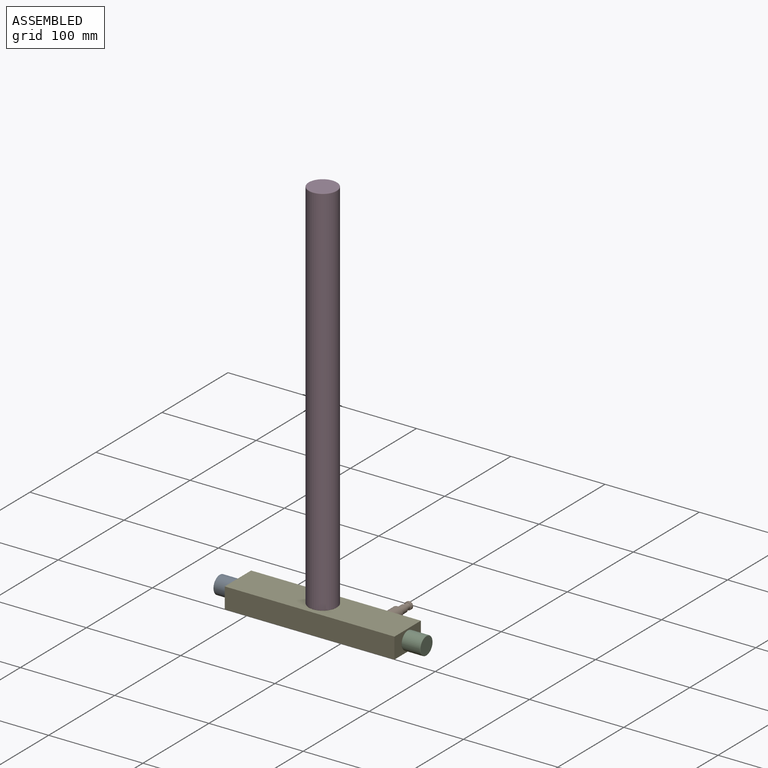
[diagram: assembled view]
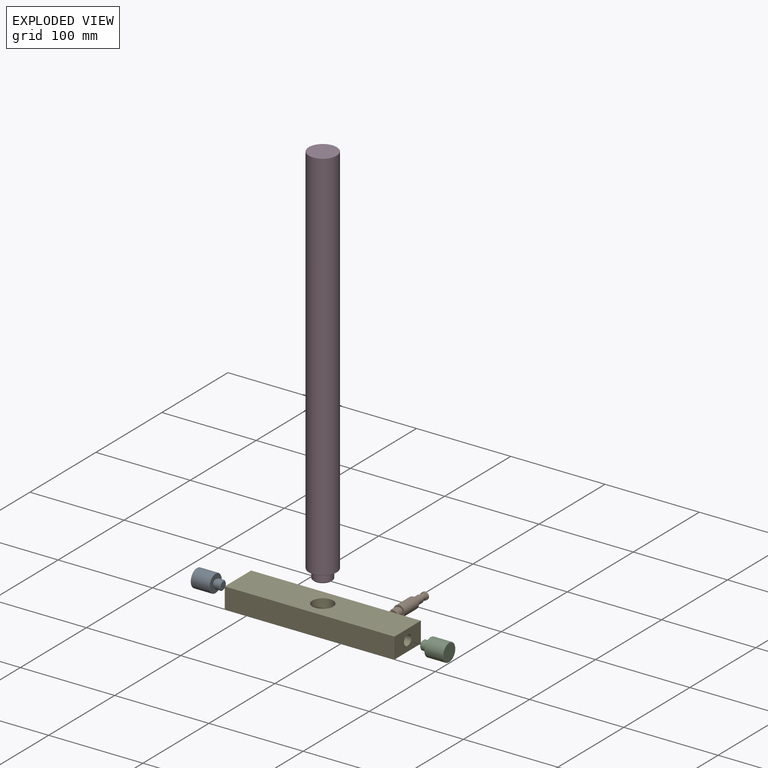
[diagram: exploded view]
GUIDED TOUR — MATED ASSEMBLY (Onshape document 00c800ad0c8215ab2e1d4e04, AutoMate assembly 00c800ad0c8215ab2e1d4e04_a147b3312b777160ae825861_ec727378c7554f30df9ab723_default)

This assembly has 5 components, labeled P0..P4 below (a component is one placed occurrence of a part; the same part can appear more than once), held together by 4 mates. A mate is a constraint between two components; its type names the relative motion it leaves free:
  FASTENED — locks the two components together rigidly (no relative motion).
Axis/direction vectors are unit vectors and 'through' points are millimeter coordinates, both in the assembly's world frame.

MATES
  1. FASTENED "Fastened 6": P4 <-> P1, direction (0.000, 1.000, 0.000) through (97.03, 25.33, 15.22) mm
  2. FASTENED "Fastened 2": P2 <-> P4, direction (-1.000, 0.000, 0.000) through (137.03, 5.33, 15.22) mm
  3. FASTENED "Fastened 1": P0 <-> P4, direction (1.000, 0.000, 0.000) through (-42.97, 5.33, 15.22) mm
  4. FASTENED "Fastened 5": P3 <-> P4, direction (0.000, 0.000, -1.000) through (47.03, 5.33, 26.22) mm

ASSEMBLY ORDER
  1. P0 — the base component [order verified]
  2. P4 [order verified]
  3. P2 [order verified]
  4. P3 [order verified]
  5. P1 [order verified]
Order-tag legend:
  [order verified] — this step's position reverses a verified removal order: the component was checked to insert without passing through the ones already placed.

Of the 5 components, 4 carry the full construction recipe — the FeatureScript program that regenerates the part's solid from scratch; the rest are supplied as boundary geometry only.
Each toured component is shown spotlighted twice — in the assembled view, then in the exploded view, where a leader line traces a displaced component back to its assembled socket (saturated green if recipe-attached, orange if geometry-only; every other component desaturated gray) — followed by its recipe or geometry summary and the mates that hold it.
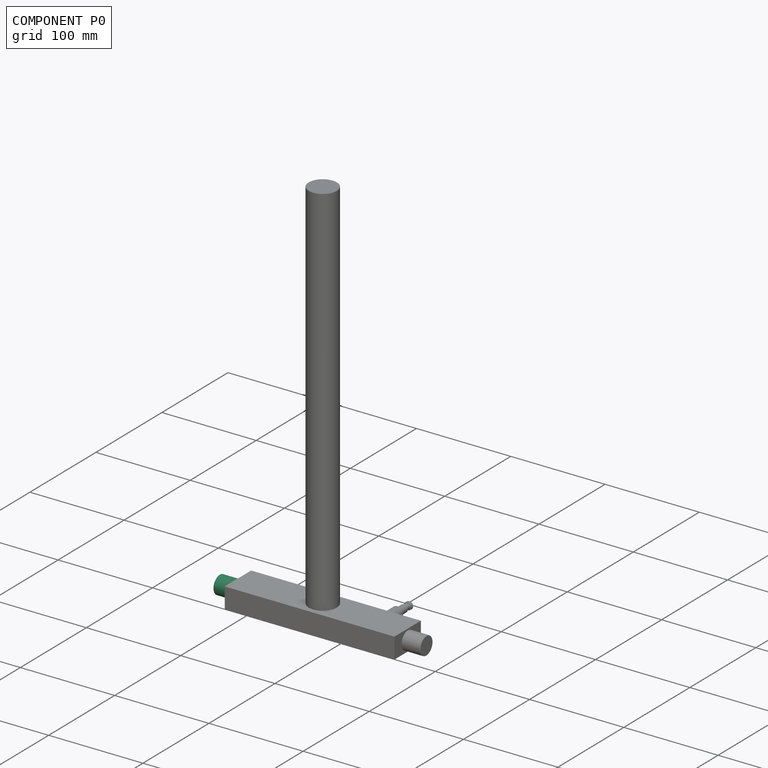
[diagram: component P0 — assembled]
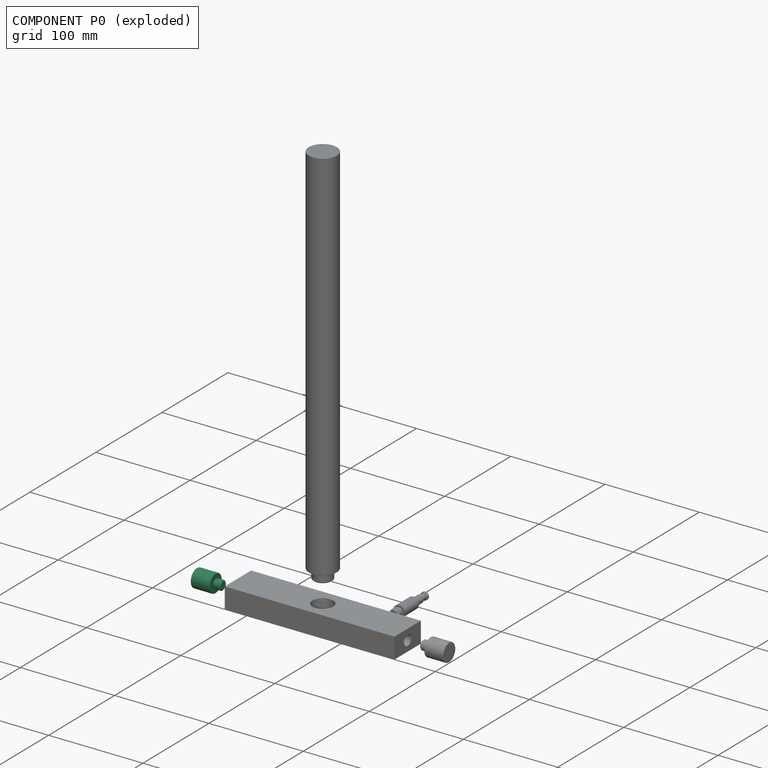
[diagram: component P0 — exploded]
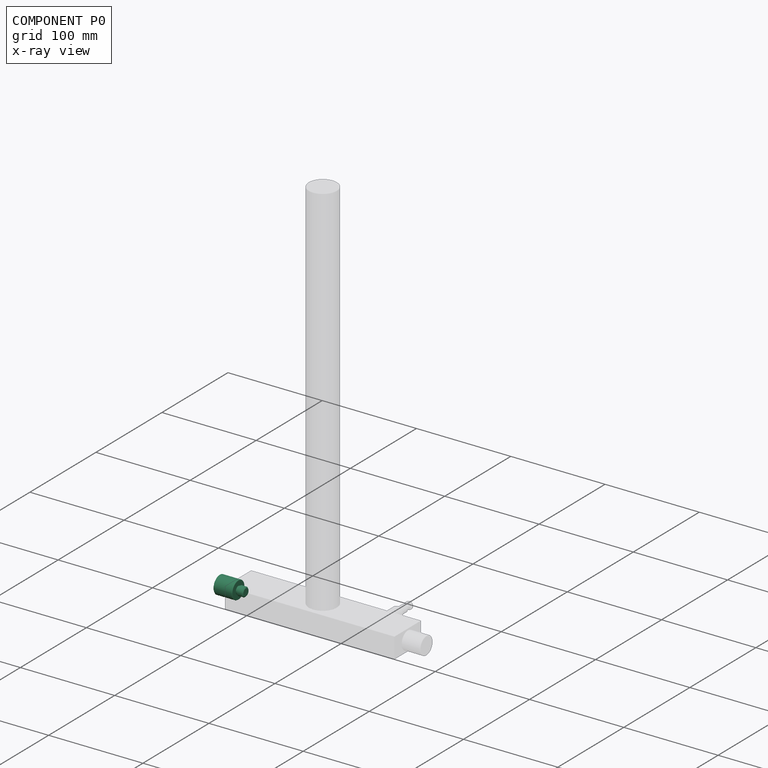
[diagram: component P0 — x-ray view]
COMPONENT P0 — recipe-attached (CADFS 00506106, mesh-verified: the recipe's output STEP matches this component's geometry to below the mesh-comparison resolution (tessellation chordal tolerance ~0.0582 mm)).
Held by: FASTENED mate "Fastened 1" to P4.
Construction recipe (FeatureScript — the CAD program that rebuilds this solid; sketch coordinates are in the units given by the * unit suffixes, e.g. mm):

FeatureScript 1511;
import(path : "onshape/std/geometry.fs", version : "1511.0");
import(path : "onshape/std/common.fs", version : "1511.0");
const mm = millimeter;
const VERTEX = EntityType.VERTEX;
const EDGE = EntityType.EDGE;
const FACE = EntityType.FACE;
const BODY = EntityType.BODY;
function v(x, y){return vector(x, y);}
function OD(order){return orderDisambiguation(order);}
function OSD(set){return originalSetDisambiguation(set);}
function TD(topology){return topologyDisambiguation(topology);}
function TDD(query){return trueDependencyDisambiguation(query);}
function sQuery(a, b, c) {return sketchEntityQuery(a, b, c);}

annotation { "Feature Type Name" : "Feature", "Feature Type Description" : "" }
export const myFeature = defineFeature(function(context is Context, id is Id, definition is map)
    precondition{}
    {
        {
            var Q0;
            Q0=qCreatedBy(makeId("Top.planeOp"),FACE);
            var sketch = newSketch(context, id + "F0", { "sketchPlane" : qUnion([Q0])});
            skCircle(sketch, "E0", {"center": v(0, 0) * mm, "radius": 9.5 * mm});
            skSolve(sketch);
        }
        {
            var Q0;
            Q0 = qSketchRegion(id + "F0", true);
            extrude(context, id + "F1", {"entities" : qUnion([Q0]), "oppositeDirection" : true, "depth" : 20 * mm});
        }
        {
            var Q0;
            Q0=makeQuery(id+"F1.opExtrude","CAP_FACE",FACE,{"disambiguationData":[OSD([sQuery(id+"F0.wireOp",EDGE,"E0")])],"isStart":true});
            var sketch = newSketch(context, id + "F2", { "sketchPlane" : qUnion([Q0])});
            skCircle(sketch, "E1", {"center": v(0, 0) * mm, "radius": 5 * mm});
            skSolve(sketch);
        }
        {
            var Q0;
            Q0 = qSketchRegion(id + "F2", true);
            extrude(context, id + "F3", {"entities" : qUnion([Q0]), "operationType" : NewBodyOperationType.ADD, "depth" : 8 * mm});
        }
        {
            var Q0;
            Q0=makeQuery(id+"F1.opExtrude","CAP_EDGE",EDGE,{"disambiguationData":[OSD([sQuery(id+"F0.wireOp",EDGE,"E0")])],"isStart":false});
            var Q1;
            Q1=makeQuery(id+"F1.opExtrude","CAP_EDGE",EDGE,{"disambiguationData":[OSD([sQuery(id+"F0.wireOp",EDGE,"E0")])],"isStart":true});
            fillet(context, id + "F4", {"entities" : qUnion([Q0, Q1]), "radius" : 0.5 * mm, "tangentPropagation" : true, "allowEdgeOverflow" : false});
        }
        {
            var Q0;
            Q0=makeQuery(id+"F3.opExtrude","CAP_EDGE",EDGE,{"disambiguationData":[OSD([sQuery(id+"F2.wireOp",EDGE,"E1")])],"isStart":false});
            chamfer(context, id + "F5", {"entities" : qUnion([Q0]), "width" : 1 * mm, "tangentPropagation" : true});
        }
        {
            var Q0;
            Q0=qCreatedBy(makeId("Right.planeOp"),FACE);
            var sketch = newSketch(context, id + "F6", { "sketchPlane" : qUnion([Q0])});
            skLineSegment(sketch, "E2", {"start": v(-5, 0) * mm, "end": v(-5, 2) * mm});
            skLineSegment(sketch, "E3", {"start": v(0, 0) * mm, "end": v(0, 15.7) * mm, "construction": true});
            skLineSegment(sketch, "E4", {"start": v(-5, 0) * mm, "end": v(-4, 0) * mm});
            skLineSegment(sketch, "E5", {"start": v(-4, 2) * mm, "end": v(-4, 0) * mm});
            skLineSegment(sketch, "E6", {"start": v(-5, 2) * mm, "end": v(-4, 2) * mm});
            skSolve(sketch);
        }
        {
            var Q0;
            Q0 = qSketchRegion(id + "F6", true);
            var Q1;
            Q1=sQuery(id+"F6.wireOp",EDGE,"E3");
            revolve(context, id + "F7", {"operationType" : NewBodyOperationType.REMOVE, "entities" : qUnion([Q0]), "axis" : qUnion([Q1]), "revolveType" : RevolveType.FULL, "oppositeDirection" : true});
        }
    });
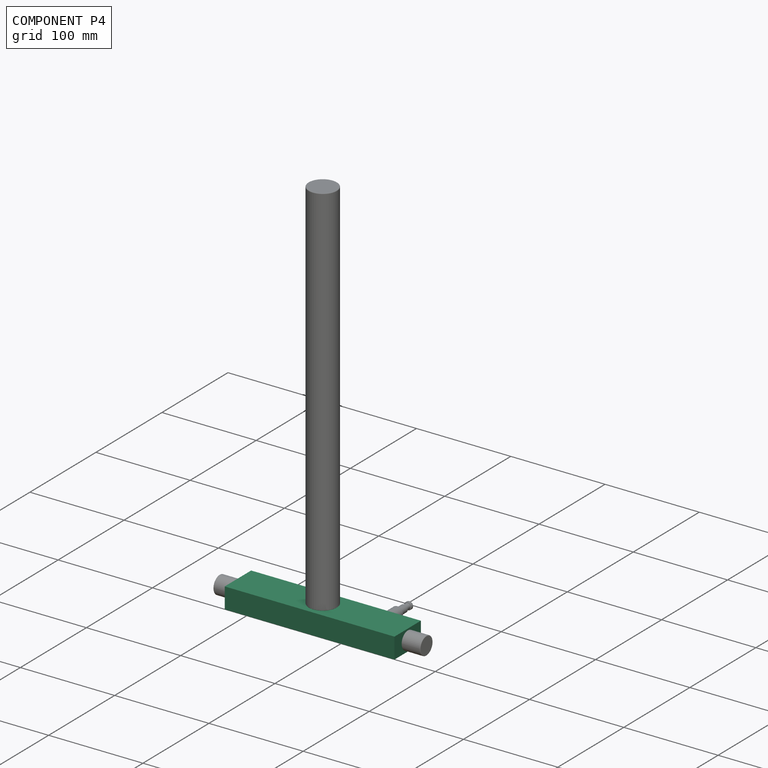
[diagram: component P4 — assembled]
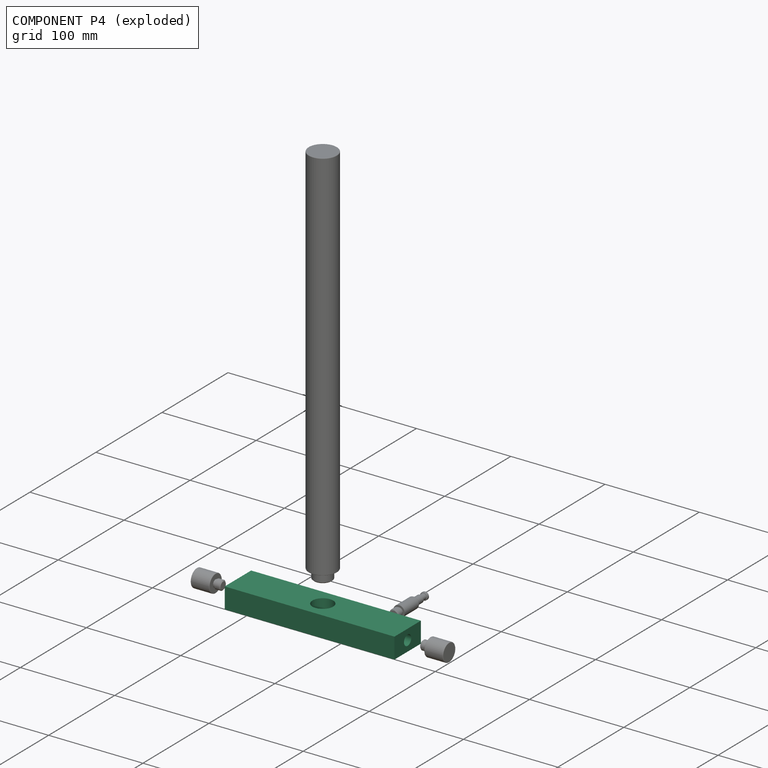
[diagram: component P4 — exploded]
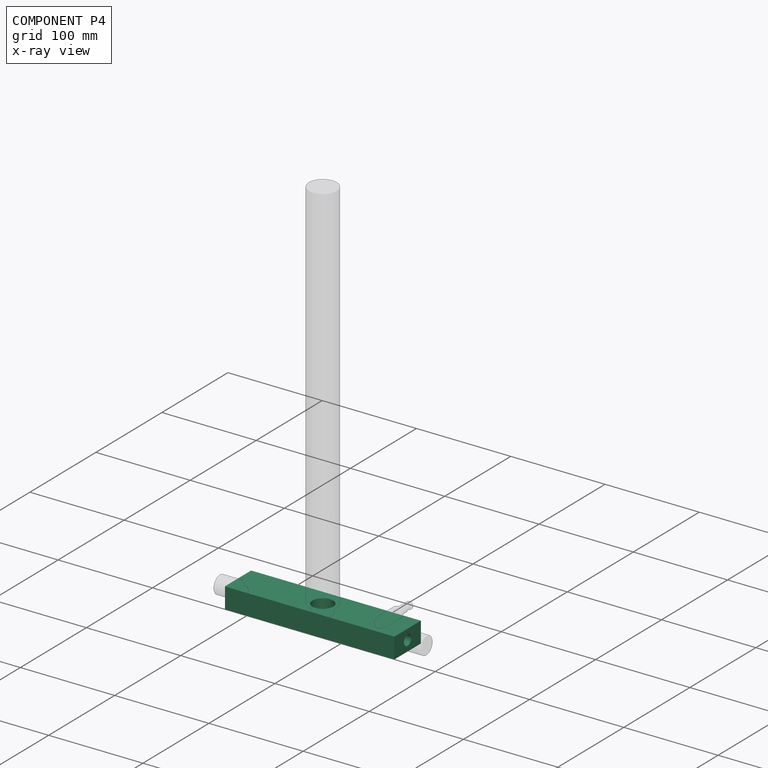
[diagram: component P4 — x-ray view]
COMPONENT P4 — recipe-attached (CADFS 00506104, mesh-verified: the recipe's output STEP matches this component's geometry to below the mesh-comparison resolution (tessellation chordal tolerance ~0.279 mm)).
Held by: FASTENED mate "Fastened 6" to P1; FASTENED mate "Fastened 2" to P2; FASTENED mate "Fastened 1" to P0; FASTENED mate "Fastened 5" to P3.
Construction recipe (FeatureScript — the CAD program that rebuilds this solid; sketch coordinates are in the units given by the * unit suffixes, e.g. mm):

FeatureScript 1511;
import(path : "onshape/std/geometry.fs", version : "1511.0");
import(path : "onshape/std/common.fs", version : "1511.0");
const mm = millimeter;
const VERTEX = EntityType.VERTEX;
const EDGE = EntityType.EDGE;
const FACE = EntityType.FACE;
const BODY = EntityType.BODY;
function v(x, y){return vector(x, y);}
function OD(order){return orderDisambiguation(order);}
function OSD(set){return originalSetDisambiguation(set);}
function TD(topology){return topologyDisambiguation(topology);}
function TDD(query){return trueDependencyDisambiguation(query);}
function sQuery(a, b, c) {return sketchEntityQuery(a, b, c);}

annotation { "Feature Type Name" : "Feature", "Feature Type Description" : "" }
export const myFeature = defineFeature(function(context is Context, id is Id, definition is map)
    precondition{}
    {
        {
            var Q0;
            Q0=qCreatedBy(makeId("Top.planeOp"),FACE);
            var sketch = newSketch(context, id + "F0", { "sketchPlane" : qUnion([Q0])});
            skLineSegment(sketch, "E0.bottom", {"start": v(-90, 20) * mm, "end": v(90, 20) * mm});
            skLineSegment(sketch, "E0.top", {"start": v(-90, -20) * mm, "end": v(90, -20) * mm});
            skLineSegment(sketch, "E0.left", {"start": v(-90, 20) * mm, "end": v(-90, -20) * mm});
            skLineSegment(sketch, "E0.right", {"start": v(90, 20) * mm, "end": v(90, -20) * mm});
            skPoint(sketch, "E0.middle", {"position": v(0, 0) * mm});
            skSolve(sketch);
        }
        {
            var Q0;
            Q0 = qSketchRegion(id + "F0", true);
            extrude(context, id + "F1", {"entities" : qUnion([Q0]), "oppositeDirection" : true, "depth" : 22 * mm});
        }
        {
            var Q0;
            Q0=makeQuery(id+"F1.opExtrude","CAP_FACE",FACE,{"disambiguationData":[OSD([sQuery(id+"F0.wireOp",EDGE,"E0.bottom"),sQuery(id+"F0.wireOp",EDGE,"E0.top"),sQuery(id+"F0.wireOp",EDGE,"E0.left"),sQuery(id+"F0.wireOp",EDGE,"E0.right")])],"isStart":true});
            var sketch = newSketch(context, id + "F2", { "sketchPlane" : qUnion([Q0])});
            skCircle(sketch, "E1", {"center": v(0, 0) * mm, "radius": 3.56 * mm});
            skSolve(sketch);
        }
        {
            var Q0;
            Q0=sQuery(id+"F2.wireOp",VERTEX,"E1.center");
            var Q1;
            Q1=makeQuery(id+"F1.opExtrude","SWEPT_BODY",BODY,{"disambiguationData":[OSD([sQuery(id+"F0.wireOp",EDGE,"E0.bottom"),sQuery(id+"F0.wireOp",EDGE,"E0.top"),sQuery(id+"F0.wireOp",EDGE,"E0.left"),sQuery(id+"F0.wireOp",EDGE,"E0.right")])]});
            hole(context, id + "F3", {"style" : HoleStyle.SIMPLE, "endStyle" : HoleEndStyle.BLIND, "standardTappedOrClearance" : lookupTablePath({ "standard" : "ISO", "fit" : "Normal", "size" : "M20", "type" : "Clearance" }), "standardBlindInLast" : lookupTablePath({ "fit" : "Standard", "standard" : "ISO", "size" : "M20", "type" : "Clearance" }), "holeDiameter" : 22 * mm, "holeDepth" : 15 * mm, "isTappedThrough" : true, "tappedDepth" : 12 * mm, "tapClearance" : 3, "locations" : qUnion([Q0]), "scope" : qUnion([Q1])});
        }
        {
            var Q0;
            Q0=makeQuery(id+"F1.opExtrude","SWEPT_FACE",FACE,{"disambiguationData":[OSD([sQuery(id+"F0.wireOp",EDGE,"E0.left")])]});
            var sketch = newSketch(context, id + "F4", { "sketchPlane" : qUnion([Q0])});
            skLineSegment(sketch, "E2", {"start": v(-20, -22) * mm, "end": v(20, 0) * mm, "construction": true});
            skLineSegment(sketch, "E3", {"start": v(20, -22) * mm, "end": v(-20, 0) * mm, "construction": true});
            skCircle(sketch, "E4", {"center": v(0, -11) * mm, "radius": 3.8 * mm});
            skSolve(sketch);
        }
        {
            var Q0;
            Q0=sQuery(id+"F4.wireOp",VERTEX,"E4.center");
            var Q1;
            Q1=makeQuery(id+"F1.opExtrude","SWEPT_BODY",BODY,{"disambiguationData":[OSD([sQuery(id+"F0.wireOp",EDGE,"E0.bottom"),sQuery(id+"F0.wireOp",EDGE,"E0.top"),sQuery(id+"F0.wireOp",EDGE,"E0.left"),sQuery(id+"F0.wireOp",EDGE,"E0.right")])]});
            hole(context, id + "F5", {"style" : HoleStyle.SIMPLE, "endStyle" : HoleEndStyle.BLIND, "standardTappedOrClearance" : lookupTablePath({ "standard" : "ISO", "fit" : "Normal", "size" : "M10", "type" : "Clearance" }), "standardBlindInLast" : lookupTablePath({ "fit" : "Standard", "standard" : "ISO", "size" : "M10", "type" : "Clearance" }), "holeDiameter" : 11 * mm, "holeDepth" : 12 * mm, "isTappedThrough" : true, "tappedDepth" : 12 * mm, "tapClearance" : 3, "locations" : qUnion([Q0]), "scope" : qUnion([Q1])});
        }
        {
            var Q0;
            Q0=makeQuery(id+"F1.opExtrude","SWEPT_FACE",FACE,{"disambiguationData":[OSD([sQuery(id+"F0.wireOp",EDGE,"E0.right")])]});
            var sketch = newSketch(context, id + "F6", { "sketchPlane" : qUnion([Q0])});
            skLineSegment(sketch, "E5", {"start": v(-20, -22) * mm, "end": v(20, 0) * mm, "construction": true});
            skLineSegment(sketch, "E6", {"start": v(20, -22) * mm, "end": v(-20, 0) * mm, "construction": true});
            skCircle(sketch, "E7", {"center": v(0, -11) * mm, "radius": 3.07 * mm, "construction": true});
            skSolve(sketch);
        }
        {
            var Q0;
            Q0=sQuery(id+"F6.wireOp",VERTEX,"E7.center");
            var Q1;
            Q1=makeQuery(id+"F1.opExtrude","SWEPT_BODY",BODY,{"disambiguationData":[OSD([sQuery(id+"F0.wireOp",EDGE,"E0.bottom"),sQuery(id+"F0.wireOp",EDGE,"E0.top"),sQuery(id+"F0.wireOp",EDGE,"E0.left"),sQuery(id+"F0.wireOp",EDGE,"E0.right")])]});
            hole(context, id + "F7", {"style" : HoleStyle.SIMPLE, "endStyle" : HoleEndStyle.BLIND, "standardTappedOrClearance" : lookupTablePath({ "standard" : "ISO", "fit" : "Normal", "size" : "M10", "type" : "Clearance" }), "standardBlindInLast" : lookupTablePath({ "fit" : "Standard", "standard" : "ISO", "size" : "M10", "type" : "Clearance" }), "holeDiameter" : 11 * mm, "holeDepth" : 12 * mm, "isTappedThrough" : true, "tappedDepth" : 12 * mm, "tapClearance" : 3, "locations" : qUnion([Q0]), "scope" : qUnion([Q1])});
        }
        {
            var Q0;
            Q0=makeQuery(id+"F1.opExtrude","SWEPT_FACE",FACE,{"disambiguationData":[OSD([sQuery(id+"F0.wireOp",EDGE,"E0.bottom")])]});
            var sketch = newSketch(context, id + "F8", { "sketchPlane" : qUnion([Q0])});
            skLineSegment(sketch, "E8", {"start": v(-28.35, -11) * mm, "end": v(-105.11, -11) * mm, "construction": true});
            skLineSegment(sketch, "E9", {"start": v(-50, -40.93) * mm, "end": v(-50, 36.3) * mm, "construction": true});
            skCircle(sketch, "E10", {"center": v(-50, -11) * mm, "radius": 3.4 * mm});
            skSolve(sketch);
        }
        {
            var Q0;
            Q0=sQuery(id+"F8.wireOp",VERTEX,"E10.center");
            var Q1;
            Q1=makeQuery(id+"F1.opExtrude","SWEPT_BODY",BODY,{"disambiguationData":[OSD([sQuery(id+"F0.wireOp",EDGE,"E0.bottom"),sQuery(id+"F0.wireOp",EDGE,"E0.top"),sQuery(id+"F0.wireOp",EDGE,"E0.left"),sQuery(id+"F0.wireOp",EDGE,"E0.right")])]});
            hole(context, id + "F9", {"style" : HoleStyle.SIMPLE, "endStyle" : HoleEndStyle.BLIND, "standardTappedOrClearance" : lookupTablePath({ "standard" : "ISO", "fit" : "Normal", "size" : "M10", "type" : "Clearance" }), "standardBlindInLast" : lookupTablePath({ "fit" : "Standard", "standard" : "ISO", "size" : "M10", "type" : "Clearance" }), "holeDiameter" : 11 * mm, "holeDepth" : 12 * mm, "isTappedThrough" : true, "tappedDepth" : 12 * mm, "tapClearance" : 3, "locations" : qUnion([Q0]), "scope" : qUnion([Q1])});
        }
    });
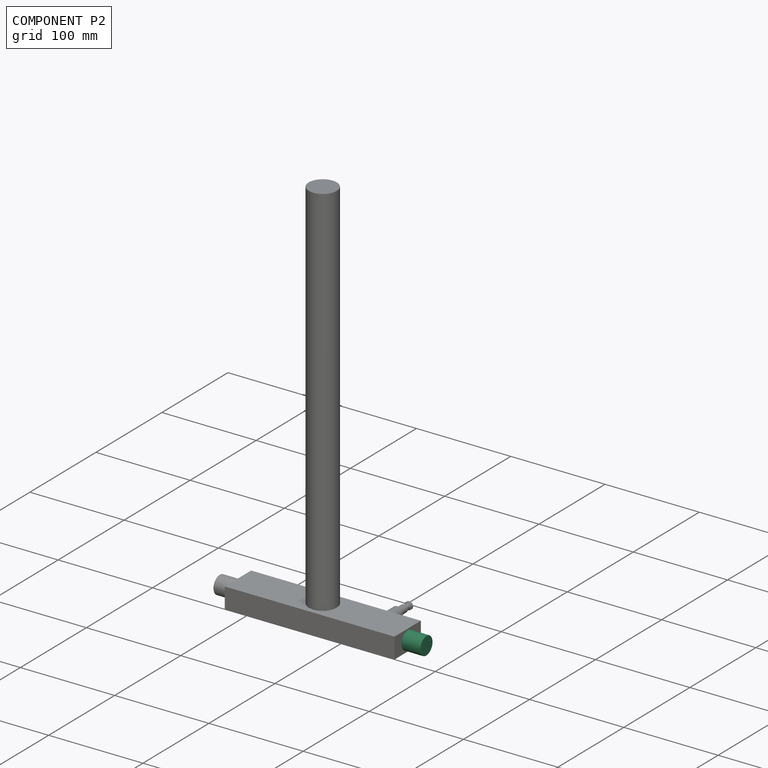
[diagram: component P2 — assembled]
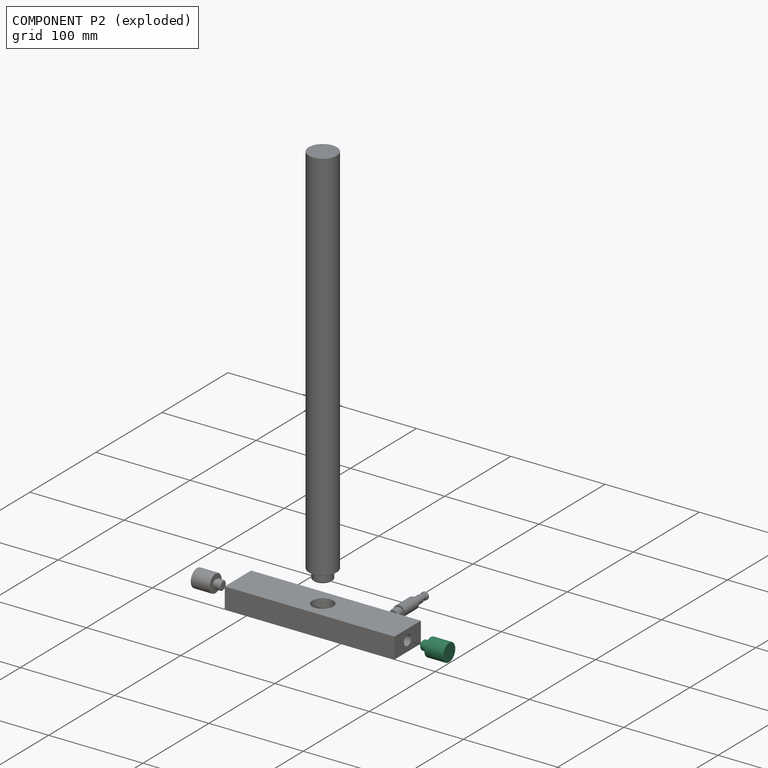
[diagram: component P2 — exploded]
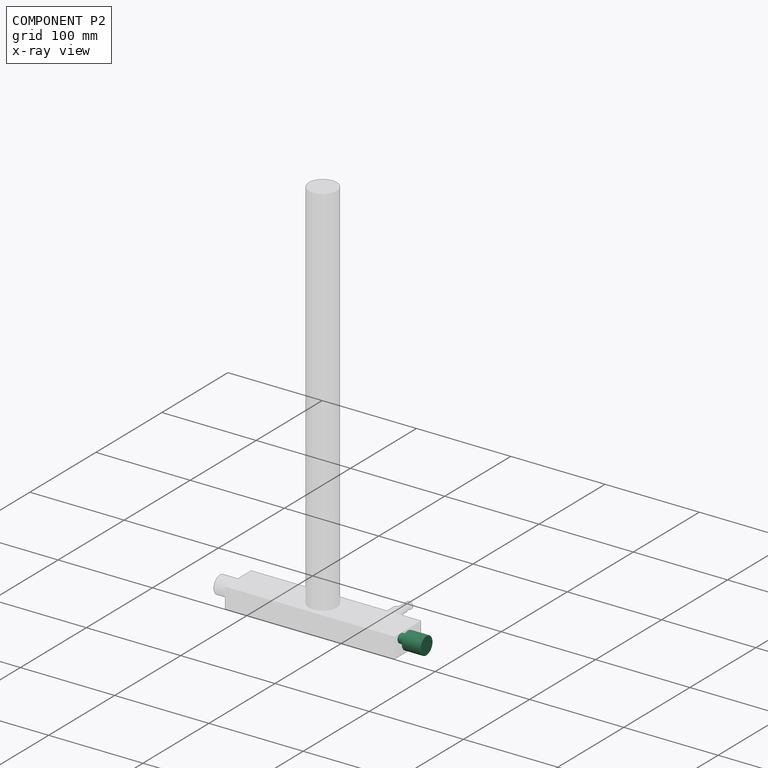
[diagram: component P2 — x-ray view]
COMPONENT P2 — same part as P0 (CADFS 00506106); its construction recipe is shown at P0.
Held by: FASTENED mate "Fastened 2" to P4.
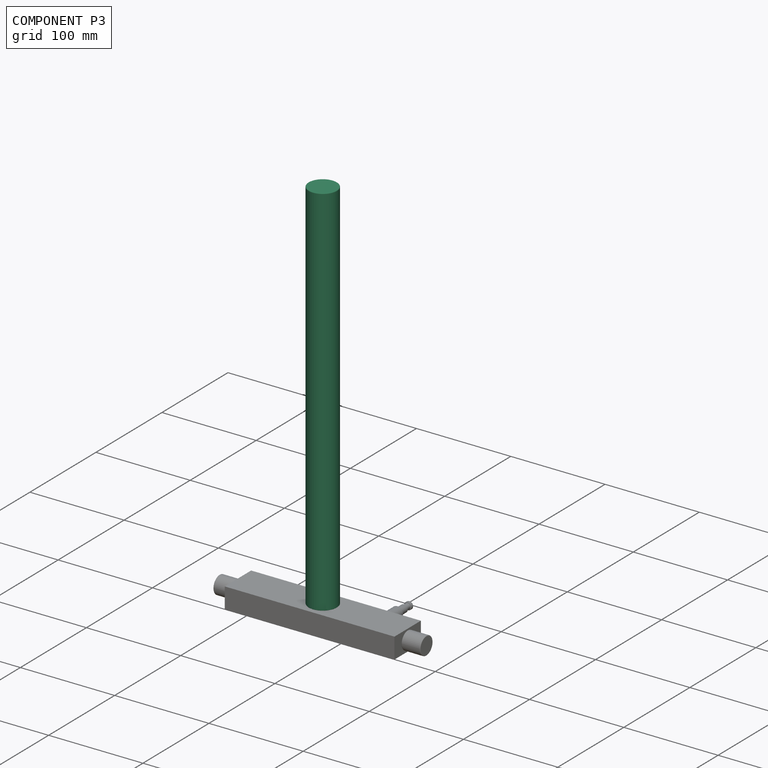
[diagram: component P3 — assembled]
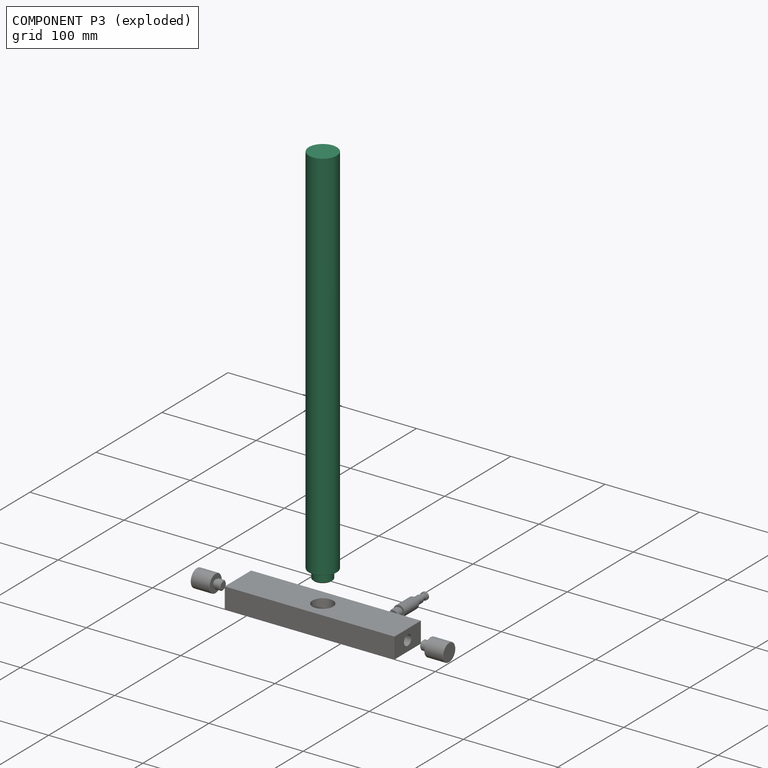
[diagram: component P3 — exploded]
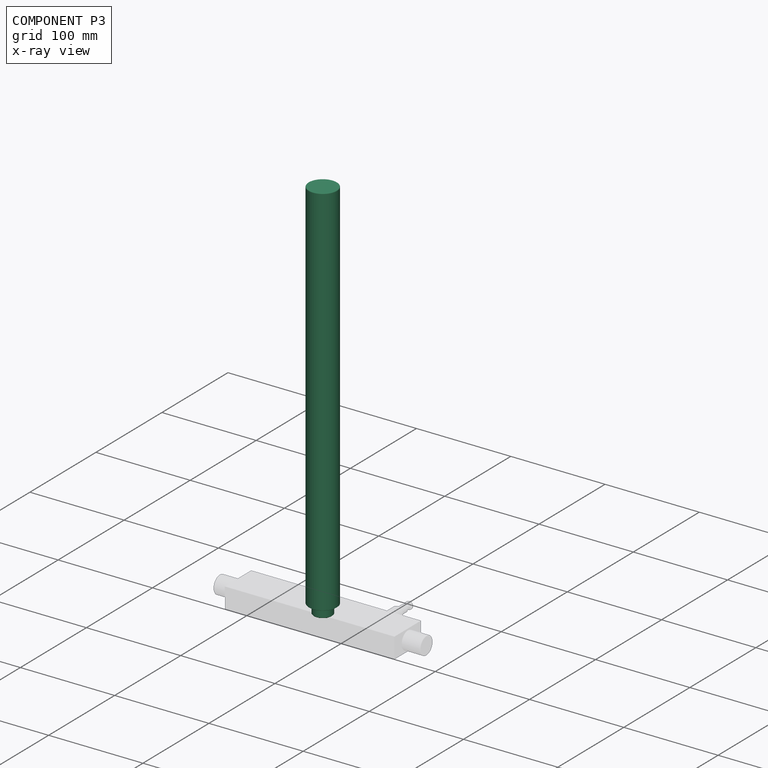
[diagram: component P3 — x-ray view]
COMPONENT P3 — recipe-attached (CADFS 00506105, mesh-verified: the recipe's output STEP matches this component's geometry to below the mesh-comparison resolution (tessellation chordal tolerance ~0.618 mm)).
Held by: FASTENED mate "Fastened 5" to P4.
Construction recipe (FeatureScript — the CAD program that rebuilds this solid; sketch coordinates are in the units given by the * unit suffixes, e.g. mm):

FeatureScript 1511;
import(path : "onshape/std/geometry.fs", version : "1511.0");
import(path : "onshape/std/common.fs", version : "1511.0");
const mm = millimeter;
const VERTEX = EntityType.VERTEX;
const EDGE = EntityType.EDGE;
const FACE = EntityType.FACE;
const BODY = EntityType.BODY;
function v(x, y){return vector(x, y);}
function OD(order){return orderDisambiguation(order);}
function OSD(set){return originalSetDisambiguation(set);}
function TD(topology){return topologyDisambiguation(topology);}
function TDD(query){return trueDependencyDisambiguation(query);}
function sQuery(a, b, c) {return sketchEntityQuery(a, b, c);}

annotation { "Feature Type Name" : "Feature", "Feature Type Description" : "" }
export const myFeature = defineFeature(function(context is Context, id is Id, definition is map)
    precondition{}
    {
        {
            var Q0;
            Q0=qCreatedBy(makeId("Top.planeOp"),FACE);
            var sketch = newSketch(context, id + "F0", { "sketchPlane" : qUnion([Q0])});
            skCircle(sketch, "E0", {"center": v(0, 0) * mm, "radius": 15 * mm});
            skSolve(sketch);
        }
        {
            var Q0;
            Q0 = qSketchRegion(id + "F0", true);
            extrude(context, id + "F1", {"entities" : qUnion([Q0]), "oppositeDirection" : true, "depth" : 400 * mm});
        }
        {
            var Q0;
            Q0=makeQuery(id+"F1.opExtrude","CAP_FACE",FACE,{"disambiguationData":[OSD([sQuery(id+"F0.wireOp",EDGE,"E0")])],"isStart":true});
            var sketch = newSketch(context, id + "F2", { "sketchPlane" : qUnion([Q0])});
            skCircle(sketch, "E1", {"center": v(0, 0) * mm, "radius": 10 * mm});
            skSolve(sketch);
        }
        {
            var Q0;
            Q0 = qSketchRegion(id + "F2", true);
            extrude(context, id + "F3", {"entities" : qUnion([Q0]), "operationType" : NewBodyOperationType.ADD, "depth" : 10 * mm});
        }
        {
            var Q0;
            Q0=makeQuery(id+"F1.opExtrude","CAP_EDGE",EDGE,{"disambiguationData":[OSD([sQuery(id+"F0.wireOp",EDGE,"E0")])],"isStart":false});
            var Q1;
            Q1=makeQuery(id+"F1.opExtrude","CAP_EDGE",EDGE,{"disambiguationData":[OSD([sQuery(id+"F0.wireOp",EDGE,"E0")])],"isStart":true});
            fillet(context, id + "F4", {"entities" : qUnion([Q0, Q1]), "radius" : 0.5 * mm, "tangentPropagation" : true, "allowEdgeOverflow" : false});
        }
        {
            var Q0;
            Q0=makeQuery(id+"F3.opExtrude","CAP_EDGE",EDGE,{"disambiguationData":[OSD([sQuery(id+"F2.wireOp",EDGE,"E1")])],"isStart":false});
            chamfer(context, id + "F5", {"entities" : qUnion([Q0]), "width" : 1 * mm, "tangentPropagation" : true});
        }
        {
            var Q0;
            Q0=qCreatedBy(makeId("Front.planeOp"),FACE);
            var sketch = newSketch(context, id + "F6", { "sketchPlane" : qUnion([Q0])});
            skLineSegment(sketch, "E2", {"start": v(0, 0) * mm, "end": v(0, 24.11) * mm, "construction": true});
            skLineSegment(sketch, "E3", {"start": v(-10, 0) * mm, "end": v(-10, 2) * mm});
            skLineSegment(sketch, "E4", {"start": v(-10, 0) * mm, "end": v(-9, 0) * mm});
            skLineSegment(sketch, "E5", {"start": v(-9, 0) * mm, "end": v(-9, 2) * mm});
            skLineSegment(sketch, "E6", {"start": v(-10, 2) * mm, "end": v(-9, 2) * mm});
            skPoint(sketch, "E7.orphan", {"position": v(-10, 9) * mm});
            skSolve(sketch);
        }
        {
            var Q0;
            Q0 = qSketchRegion(id + "F6", true);
            var Q1;
            Q1=sQuery(id+"F6.wireOp",EDGE,"E2");
            revolve(context, id + "F7", {"operationType" : NewBodyOperationType.REMOVE, "entities" : qUnion([Q0]), "axis" : qUnion([Q1]), "revolveType" : RevolveType.FULL, "oppositeDirection" : true});
        }
    });
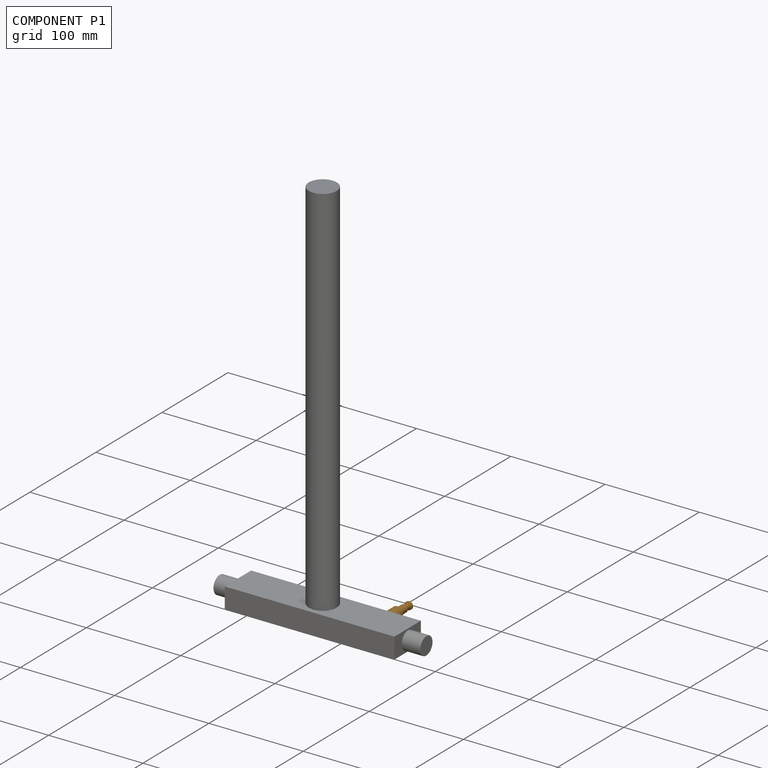
[diagram: component P1 — assembled]
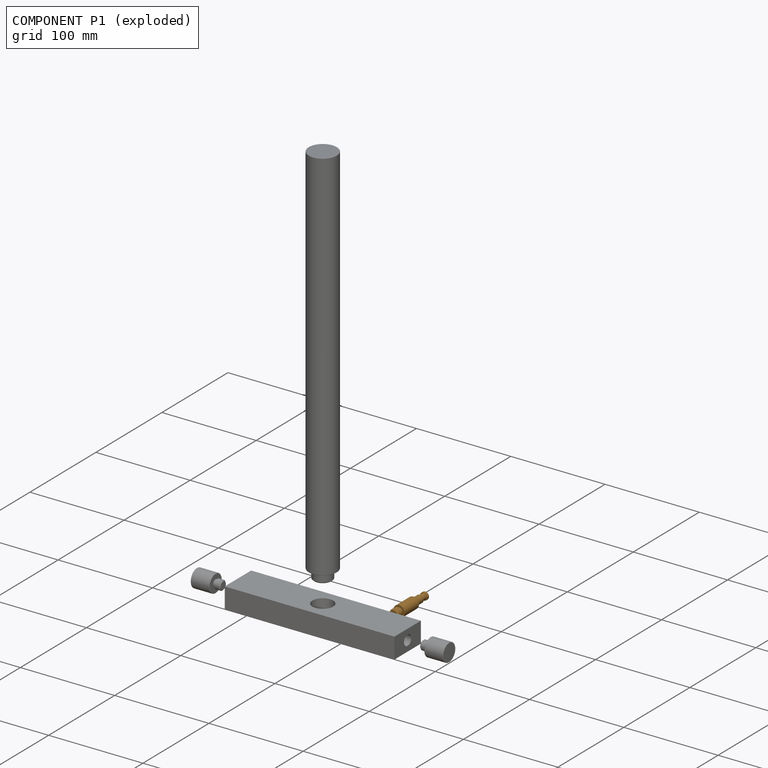
[diagram: component P1 — exploded]
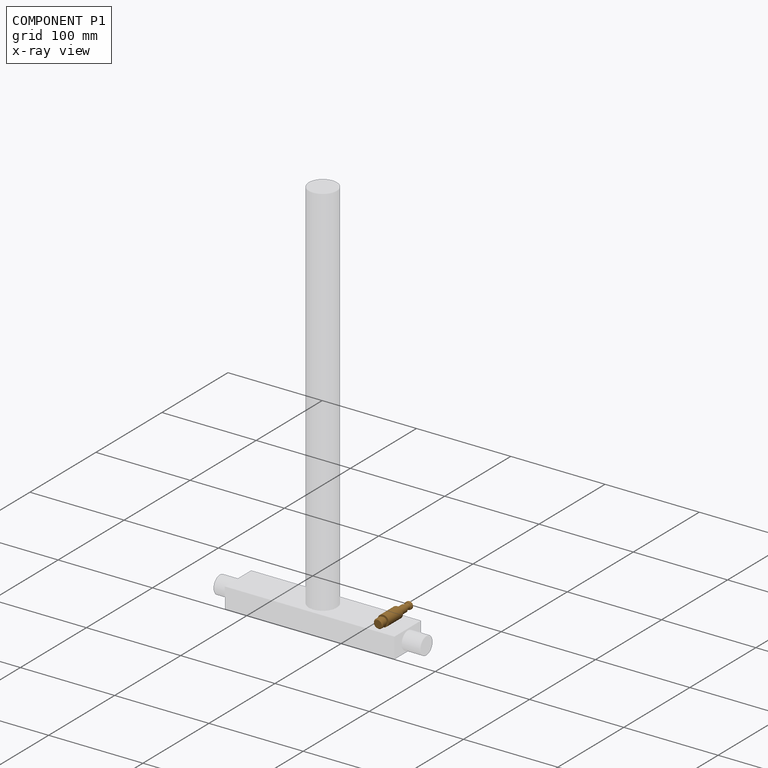
[diagram: component P1 — x-ray view]
COMPONENT P1 — geometry summary (no construction recipe available for this part):
  bounding box: 48.0 x 13.0 x 13.0 mm
  B-rep topology: 1 solid, 19 faces, 64 edges
  volume: 3838 mm^3 (47% of its bounding box)
  symmetry: revolution-symmetric about the z axis through its bounding-box center; mirror-symmetric across its x mid-plane, y mid-plane
Held by: FASTENED mate "Fastened 6" to P4.
PROVENANCE & LICENSES
Assembly (occurrences, transforms, mates, per-part STEP geometry): AutoMate dataset, Zenodo record 7776208, CC0.
Construction recipes: CADFS (HuggingFace VladPyatov/CADFS, CC-BY-4.0, layered over the ABC dataset), FeatureScript reconstruction programs keyed by ABC model id.
Join: ABC meta listings map ABC model id -> Onshape documentId; within a shared document, parts are matched by geometric signature (bounding-box dims + volume at 0.1% relative tolerance, exact B-rep face/solid counts).
Verification: 4 of this assembly's 5 components carry a recipe attachment, and every attachment is mesh-verified: the CADFS STEP and the AutoMate member STEP were compared as meshes in their shared local frame (symmetric sampled-point-to-mesh distance); worst across the 4 attachments: below the mesh-comparison resolution (tessellation chordal tolerance ~0.618 mm) on a 412 mm part.
Renders: orthographic iso camera (az 35 / el 25); the floor grid conveys scale (grid pitch printed in each image; no ruler). In the exploded view each component is displaced by its stored offset vector: the offsets alone carry the explosion direction (mate normal/axis signs are not orientation cues and do not encode it), and separation distances are assigned per mate-chain, not proportionally to assembly-order depth.
